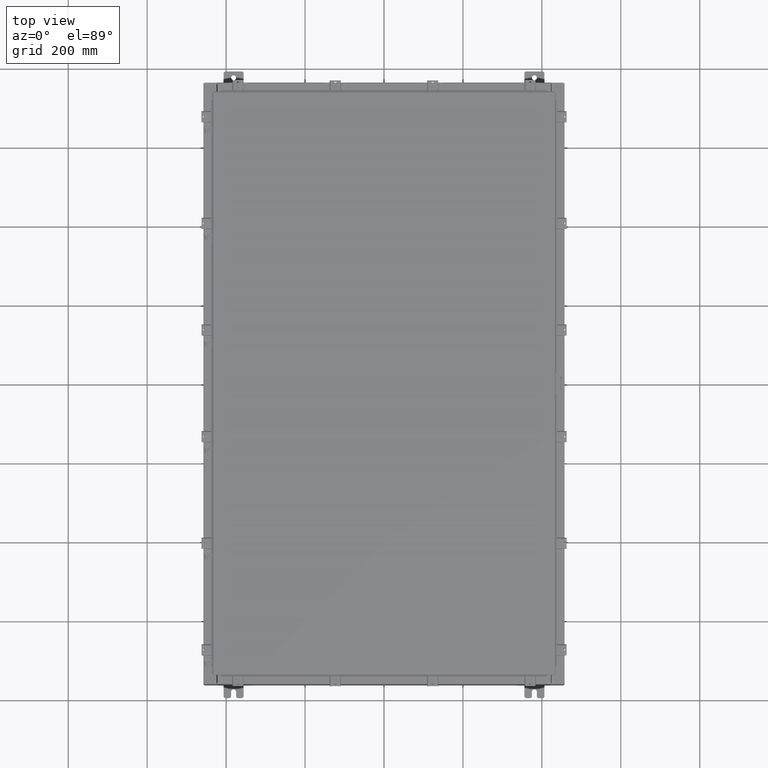
[diagram: clean part render]
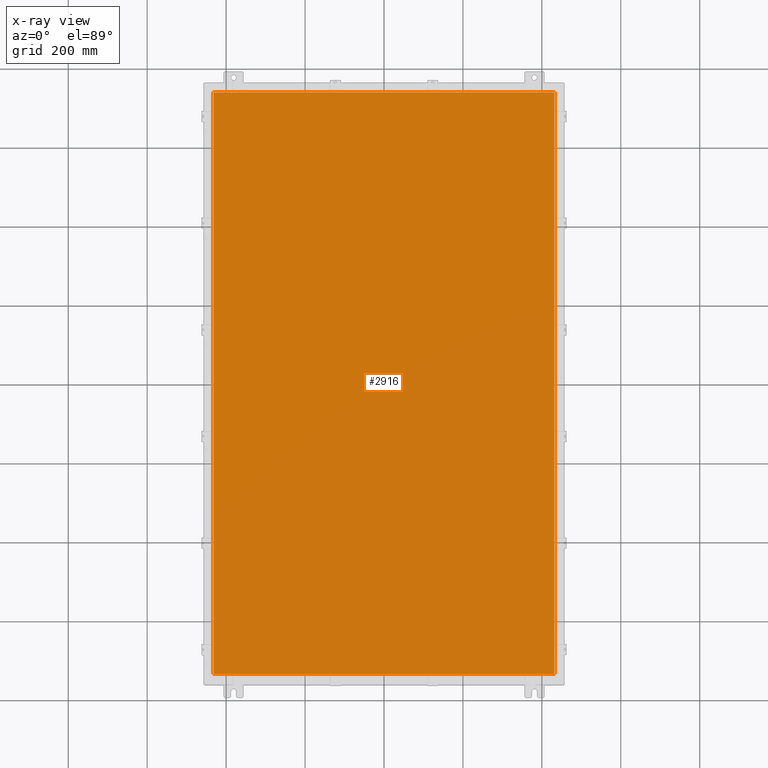
[diagram: x-ray — body ghosted, one internal face saturated and labeled with its STEP entity id]
A machine part, top view, then the same camera in x-ray: the body is ghosted and one INTERNAL B-rep face — a face not visible from any outside direction — is saturated and labeled: STEP entity #2916.
In plain terms, the highlighted planar face has unit normal (0, 0, -1).
Its self-contained STEP definition (entity closure, byte-faithful):
#817 = CARTESIAN_POINT ( 'NONE',  ( 16.99030000000000500, -29.00630000000000000, -0.07470000000000019700 ) ) ;
#2056 = ORIENTED_EDGE ( 'NONE', *, *, #27274, .F. ) ;
#2283 = LINE ( 'NONE', #5222, #19314 ) ;
#2456 = FACE_OUTER_BOUND ( 'NONE', #22354, .T. ) ;
#2476 = CARTESIAN_POINT ( 'NONE',  ( -16.99029999999999800, 29.00629999999998900, -0.07470000000000019700 ) ) ;
#2538 = VERTEX_POINT ( 'NONE', #4960 ) ;
#2787 = LINE ( 'NONE', #2476, #14182 ) ;
#2916 = ADVANCED_FACE ( 'NONE', ( #2456 ), #22691, .T. ) ;
#3797 = VECTOR ( 'NONE', #10152, 39.37007874015748100 ) ;
#4960 = CARTESIAN_POINT ( 'NONE',  ( -16.99029999999999800, 29.00630000000000000, -0.07470000000000000300 ) ) ;
#5222 = CARTESIAN_POINT ( 'NONE',  ( 16.99030000000000100, 29.00630000000000300, -0.07469999999999804600 ) ) ;
#5229 = CARTESIAN_POINT ( 'NONE',  ( 16.99030000000000500, -29.00630000000000300, -0.07470000000000000300 ) ) ;
#6534 = VERTEX_POINT ( 'NONE', #23286 ) ;
#7774 = EDGE_CURVE ( 'NONE', #6534, #2538, #2283, .T. ) ;
#7993 = ORIENTED_EDGE ( 'NONE', *, *, #18150, .F. ) ;
#8155 = ORIENTED_EDGE ( 'NONE', *, *, #7774, .F. ) ;
#9924 = DIRECTION ( 'NONE',  ( 0.0000000000000000000, 0.0000000000000000000, -1.000000000000000000 ) ) ;
#10152 = DIRECTION ( 'NONE',  ( 1.000000000000000000, -0.0000000000000000000, -0.0000000000000000000 ) ) ;
#10836 = VERTEX_POINT ( 'NONE', #5229 ) ;
#11547 = EDGE_CURVE ( 'NONE', #27012, #10836, #14516, .T. ) ;
#14182 = VECTOR ( 'NONE', #17429, 39.37007874015748100 ) ;
#14516 = LINE ( 'NONE', #18661, #3797 ) ;
#14565 = CARTESIAN_POINT ( 'NONE',  ( -16.99029999999999800, -29.00630000000000300, -0.07470000000000000300 ) ) ;
#14992 = VECTOR ( 'NONE', #15750, 39.37007874015748100 ) ;
#15750 = DIRECTION ( 'NONE',  ( 0.0000000000000000000, 1.000000000000000000, 0.0000000000000000000 ) ) ;
#15887 = DIRECTION ( 'NONE',  ( -1.000000000000000000, -0.0000000000000000000, -0.0000000000000000000 ) ) ;
#17230 = AXIS2_PLACEMENT_3D ( 'NONE', #18314, #9924, #24814 ) ;
#17429 = DIRECTION ( 'NONE',  ( 0.0000000000000000000, -1.000000000000000000, 0.0000000000000000000 ) ) ;
#17488 = ORIENTED_EDGE ( 'NONE', *, *, #11547, .F. ) ;
#18150 = EDGE_CURVE ( 'NONE', #10836, #6534, #26313, .T. ) ;
#18314 = CARTESIAN_POINT ( 'NONE',  ( 0.0000000000000000000, 0.0000000000000000000, -0.07470000000000000300 ) ) ;
#18661 = CARTESIAN_POINT ( 'NONE',  ( -16.99029999999999400, -29.00630000000000700, -0.07469999999999804600 ) ) ;
#19314 = VECTOR ( 'NONE', #15887, 39.37007874015748100 ) ;
#22354 = EDGE_LOOP ( 'NONE', ( #7993, #17488, #2056, #8155 ) ) ;
#22691 = PLANE ( 'NONE',  #17230 ) ;
#23286 = CARTESIAN_POINT ( 'NONE',  ( 16.99030000000000500, 29.00630000000000000, -0.07470000000000000300 ) ) ;
#24814 = DIRECTION ( 'NONE',  ( -1.000000000000000000, 0.0000000000000000000, -0.0000000000000000000 ) ) ;
#26313 = LINE ( 'NONE', #817, #14992 ) ;
#27012 = VERTEX_POINT ( 'NONE', #14565 ) ;
#27274 = EDGE_CURVE ( 'NONE', #2538, #27012, #2787, .T. ) ;